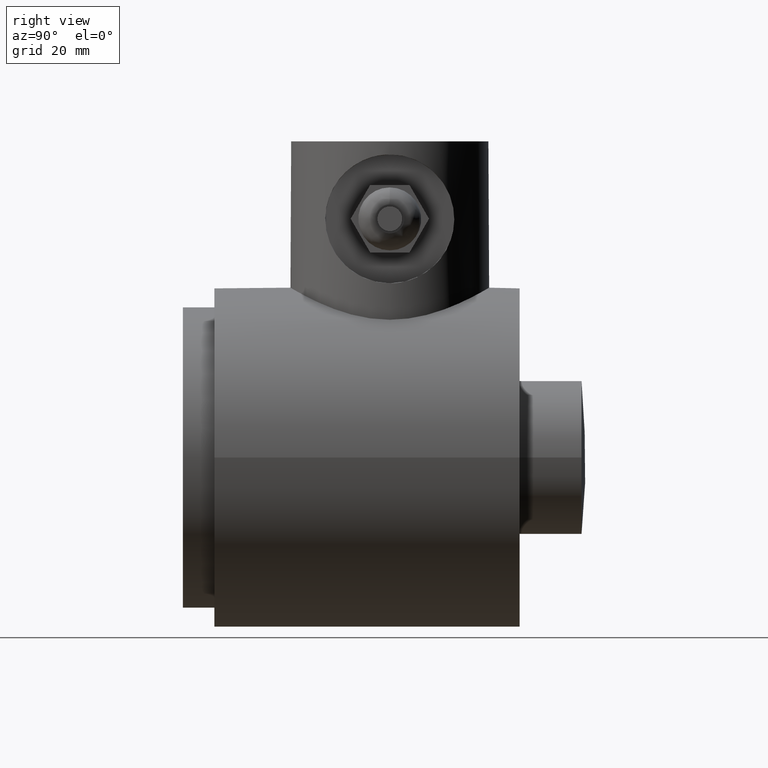
[diagram: clean part render]
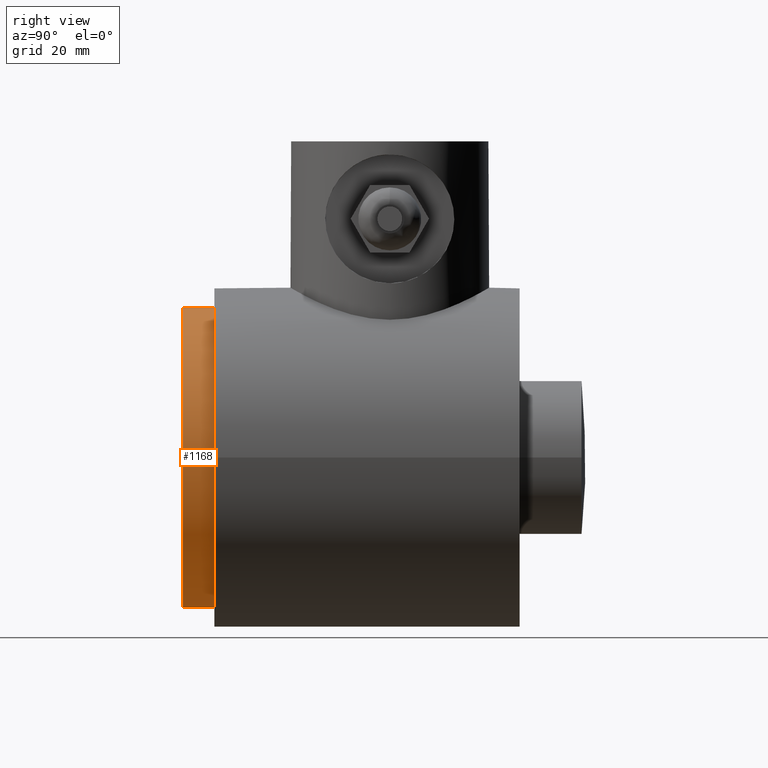
[diagram: same view with one face highlighted and labeled with its STEP entity id]
A machine part, right view. The second image highlights one B-rep face of the part: STEP entity #1168.
In plain terms, the highlighted cylindrical surface (bore or boss wall) has radius 30.988 mm, axis along (0, 1, 0).
Its self-contained STEP definition (entity closure, byte-faithful):
#195=FACE_OUTER_BOUND('',#275,.T.);
#275=EDGE_LOOP('',(#1052,#1053,#1054,#1055));
#352=LINE('',#4970,#427);
#427=VECTOR('',#1546,1.22);
#453=CIRCLE('',#1274,1.22);
#455=CIRCLE('',#1279,1.22);
#563=VERTEX_POINT('',#4961);
#565=VERTEX_POINT('',#4969);
#726=EDGE_CURVE('',#563,#563,#453,.T.);
#729=EDGE_CURVE('',#563,#565,#352,.T.);
#730=EDGE_CURVE('',#565,#565,#455,.T.);
#1052=ORIENTED_EDGE('',*,*,#726,.F.);
#1053=ORIENTED_EDGE('',*,*,#729,.T.);
#1054=ORIENTED_EDGE('',*,*,#730,.T.);
#1055=ORIENTED_EDGE('',*,*,#729,.F.);
#1099=CYLINDRICAL_SURFACE('',#1278,1.22);
#1168=ADVANCED_FACE('',(#195),#1099,.T.);
#1274=AXIS2_PLACEMENT_3D('',#4962,#1535,#1536);
#1278=AXIS2_PLACEMENT_3D('',#4968,#1544,#1545);
#1279=AXIS2_PLACEMENT_3D('',#4971,#1547,#1548);
#1535=DIRECTION('center_axis',(0.,1.,0.));
#1536=DIRECTION('ref_axis',(1.,0.,0.));
#1544=DIRECTION('center_axis',(0.,1.,0.));
#1545=DIRECTION('ref_axis',(1.,0.,0.));
#1546=DIRECTION('',(0.,-1.,0.));
#1547=DIRECTION('center_axis',(0.,1.,0.));
#1548=DIRECTION('ref_axis',(1.,0.,0.));
#4961=CARTESIAN_POINT('',(-1.22,0.255905511811024,1.49406909495977E-16));
#4962=CARTESIAN_POINT('Origin',(0.,0.255905511811024,0.));
#4968=CARTESIAN_POINT('Origin',(0.,0.,0.));
#4969=CARTESIAN_POINT('',(-1.22,0.,1.49406909495977E-16));
#4970=CARTESIAN_POINT('',(-1.22,0.,1.49406909495977E-16));
#4971=CARTESIAN_POINT('Origin',(0.,0.,0.));